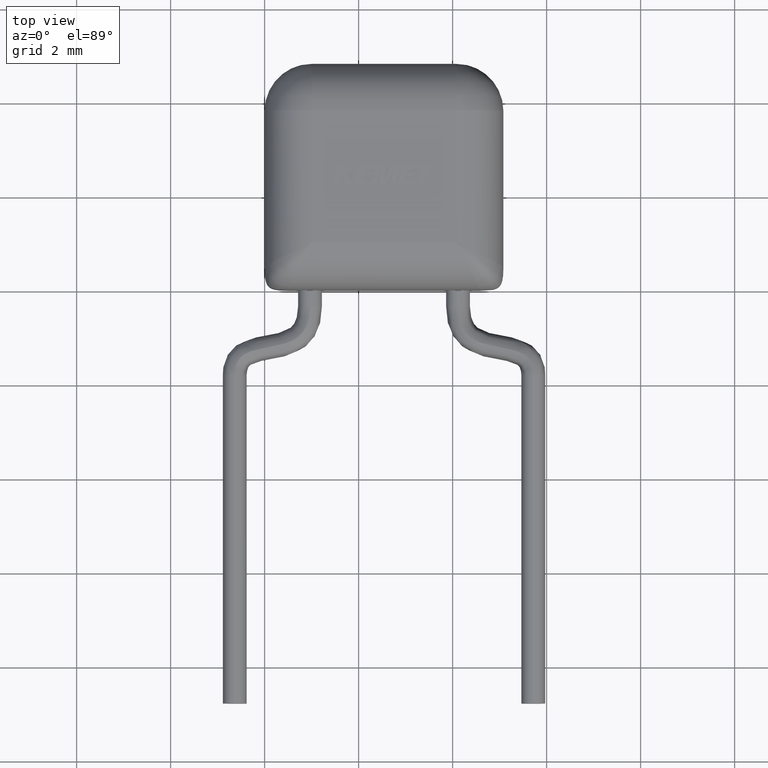
[diagram: clean part render]
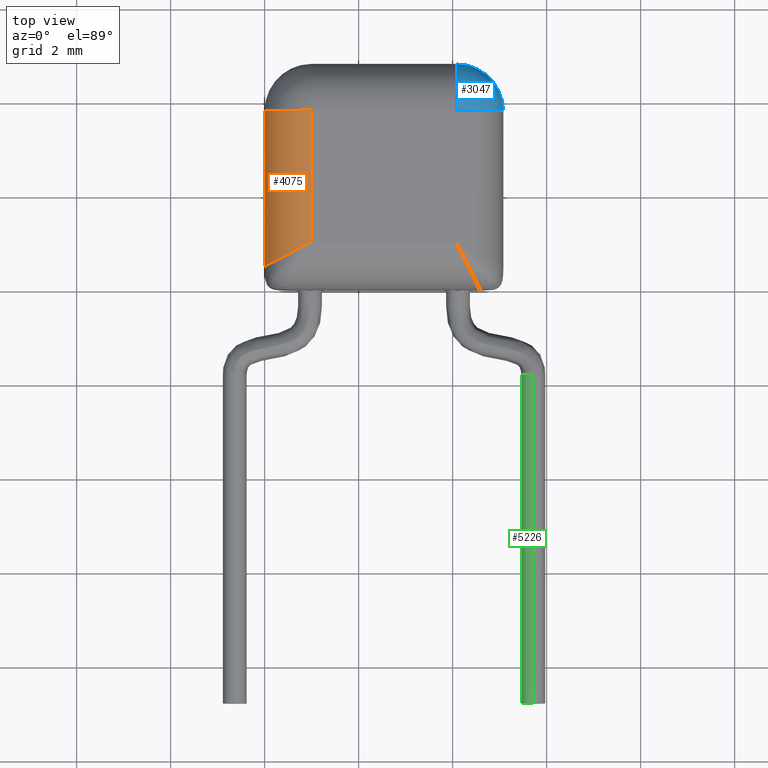
[diagram: same view with three faces highlighted in distinct colors, each labeled with its STEP entity id]
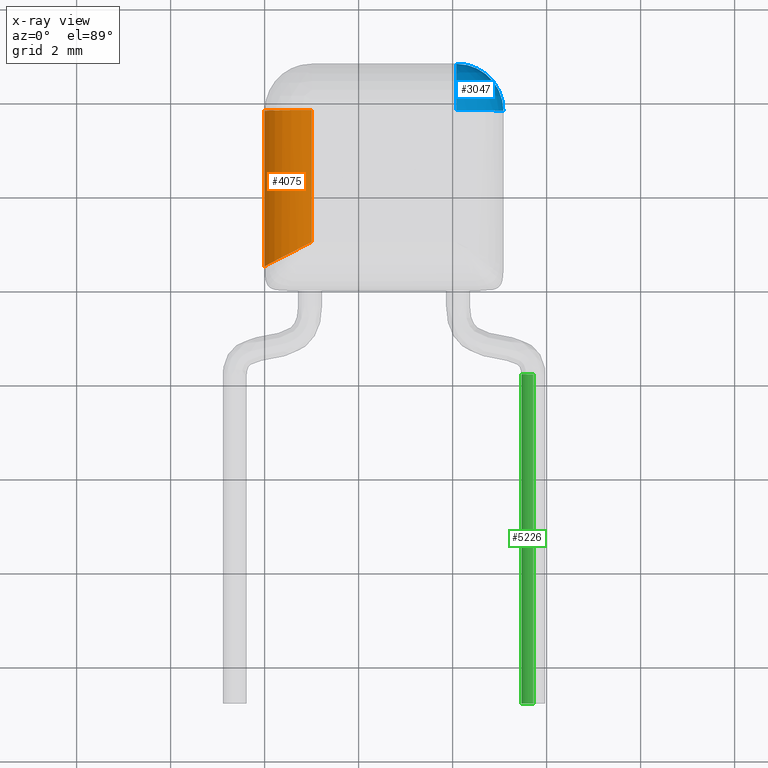
[diagram: x-ray of the same camera — body ghosted, the three highlighted faces saturated]
A machine part, top view with three faces highlighted in distinct colors.
The next image is the same camera in x-ray (body ghosted, the three faces saturated) — at least one of them is partly hidden behind the body in this view.
Their STEP definitions:

[orange] entity #4075 — the highlighted cylindrical surface (partial cylindrical patch) has radius 1 mm, axis along (0, -1, 0).
#37 = CARTESIAN_POINT ( 'NONE',  ( 0.0000000000000000000, 3.810759999999999700, 2.180000000000000200 ) ) ;
#119 = CARTESIAN_POINT ( 'NONE',  ( 0.05261129900044057100, 0.5263375340167020200, 2.500556340011421200 ) ) ;
#186 = CARTESIAN_POINT ( 'NONE',  ( 0.6064352118161902000, 0.8032222850395789300, 3.099368758143767400 ) ) ;
#204 = CARTESIAN_POINT ( 'NONE',  ( 0.5558561874351499700, 0.7779628542566706700, 3.076112443433945700 ) ) ;
#251 = CARTESIAN_POINT ( 'NONE',  ( 0.6184980475632071400, 0.8092505837394361500, 3.104378344659729700 ) ) ;
#845 = EDGE_CURVE ( 'NONE', #5909, #2433, #4259, .T. ) ;
#890 = CARTESIAN_POINT ( 'NONE',  ( 0.9999999999999997800, 0.9999999999999997800, 3.180000000000000200 ) ) ;
#975 = EDGE_CURVE ( 'NONE', #3223, #2433, #5128, .T. ) ;
#1173 = CARTESIAN_POINT ( 'NONE',  ( 0.02797684700615521400, 0.5140466306025406300, 2.417399604055470200 ) ) ;
#1419 = CARTESIAN_POINT ( 'NONE',  ( 0.9999999999999997800, 3.810759999999999700, 3.180000000000000200 ) ) ;
#1433 = FACE_OUTER_BOUND ( 'NONE', #2202, .T. ) ;
#1579 = VECTOR ( 'NONE', #5261, 1000.000000000000000 ) ;
#1694 = CYLINDRICAL_SURFACE ( 'NONE', #6323, 1.000000000000000000 ) ;
#1697 = VERTEX_POINT ( 'NONE', #37 ) ;
#1746 = CARTESIAN_POINT ( 'NONE',  ( 0.6323066505644324700, 0.8161533021734240800, 3.109950762281117800 ) ) ;
#1815 = CARTESIAN_POINT ( 'NONE',  ( 0.1414578906441557000, 0.5707462164869485700, 2.697057109226340500 ) ) ;
#1916 = AXIS2_PLACEMENT_3D ( 'NONE', #3597, #6211, #6654 ) ;
#1928 = VECTOR ( 'NONE', #4700, 1000.000000000000000 ) ;
#2163 = CARTESIAN_POINT ( 'NONE',  ( 0.05833379440531569200, 0.5291907817051679800, 2.516999852995674300 ) ) ;
#2202 = EDGE_LOOP ( 'NONE', ( #6061, #3657, #5513, #4486 ) ) ;
#2249 = CARTESIAN_POINT ( 'NONE',  ( 0.07792418075936855000, 0.5389608688602336400, 2.567333794272500300 ) ) ;
#2308 = CARTESIAN_POINT ( 'NONE',  ( 0.4024111036962501100, 0.7012872847228088800, 2.984345280747385100 ) ) ;
#2433 = VERTEX_POINT ( 'NONE', #890 ) ;
#2692 = CARTESIAN_POINT ( 'NONE',  ( -2.039231820514728100E-016, 0.4999999439244476300, 2.247807635510692400 ) ) ;
#2714 = CARTESIAN_POINT ( 'NONE',  ( -5.421010862427522200E-017, 0.4999999999999997800, 2.180000000000000600 ) ) ;
#2778 = CARTESIAN_POINT ( 'NONE',  ( 0.2192752663993055900, 0.6096608664574573200, 2.805806897902507000 ) ) ;
#2824 = CARTESIAN_POINT ( 'NONE',  ( 0.2526465610577999800, 0.6263353999103833400, 2.844645908044896900 ) ) ;
#2849 = CARTESIAN_POINT ( 'NONE',  ( 0.3004057133884388000, 0.6502036066705113600, 2.894593094074018300 ) ) ;
#2881 = CARTESIAN_POINT ( 'NONE',  ( -5.421010862427522200E-017, 0.4999999999999997800, 2.180000000000000600 ) ) ;
#3149 = CARTESIAN_POINT ( 'NONE',  ( 0.9999999999999997800, 0.0000000000000000000, 3.180000000000000200 ) ) ;
#3150 = DIRECTION ( 'NONE',  ( 0.0000000000000000000, -1.000000000000000000, 0.0000000000000000000 ) ) ;
#3218 = CARTESIAN_POINT ( 'NONE',  ( 0.07065721311030062600, 0.5353362404216923700, 2.549629717601660700 ) ) ;
#3223 = VERTEX_POINT ( 'NONE', #2881 ) ;
#3301 = CARTESIAN_POINT ( 'NONE',  ( 0.3548285192988905300, 0.6774230487217202100, 2.946202409536880400 ) ) ;
#3324 = CARTESIAN_POINT ( 'NONE',  ( 0.3077789602787390200, 0.6538904593797558700, 2.901721406068852500 ) ) ;
#3597 = CARTESIAN_POINT ( 'NONE',  ( 1.000000000000000000, 3.810759999999999700, 2.180000000000000200 ) ) ;
#3657 = ORIENTED_EDGE ( 'NONE', *, *, #845, .F. ) ;
#3857 = CARTESIAN_POINT ( 'NONE',  ( 0.6265844989219998600, 0.8132924681237804200, 3.107674472723926900 ) ) ;
#3878 = CARTESIAN_POINT ( 'NONE',  ( 0.2880975378288774300, 0.6440507032203024500, 2.882332072678239300 ) ) ;
#3903 = CARTESIAN_POINT ( 'NONE',  ( 0.5111597003944349200, 0.7556451090435067900, 3.053017818574586900 ) ) ;
#4069 = EDGE_CURVE ( 'NONE', #3223, #1697, #5176, .T. ) ;
#4075 = ADVANCED_FACE ( 'NONE', ( #1433 ), #1694, .T. ) ;
#4223 = CARTESIAN_POINT ( 'NONE',  ( 0.006921618483178028900, 0.5035115945656391000, 2.316182436500033900 ) ) ;
#4259 = LINE ( 'NONE', #3149, #1579 ) ;
#4486 = ORIENTED_EDGE ( 'NONE', *, *, #4069, .F. ) ;
#4700 = DIRECTION ( 'NONE',  ( -0.0000000000000000000, 1.000000000000000000, -0.0000000000000000000 ) ) ;
#4744 = CARTESIAN_POINT ( 'NONE',  ( 0.03676939253717599600, 0.5184362359606937700, 2.450912658359478700 ) ) ;
#4822 = EDGE_CURVE ( 'NONE', #1697, #5909, #5242, .T. ) ;
#4904 = CARTESIAN_POINT ( 'NONE',  ( 0.1097746922682269500, 0.5548572452970981200, 2.639912443074629700 ) ) ;
#5128 = B_SPLINE_CURVE_WITH_KNOTS ( 'NONE', 3,
 ( #2714, #2692, #4223, #1173, #4744, #119, #2163, #3218, #2249, #4904, #1815, #5867, #2778, #2824, #6382, #3878, #2849, #3324, #3301, #2308, #6400, #3903, #204, #5939, #186, #251, #3857, #1746, #5404, #6439, #5386 ),
 .UNSPECIFIED., .F., .F.,
 ( 4, 2, 2, 2, 2, 2, 2, 1, 2, 2, 2, 2, 1, 1, 2, 2, 4 ),
 ( 0.0000000000000000000, 0.1249999999999967200, 0.1874999999999950900, 0.2187499999999939200, 0.2499999999999927300, 0.3749999999999879500, 0.4374999999999859000, 0.4687499999999848500, 0.4843749999999842900, 0.4999999999999837900, 0.6249999999999837900, 0.6874999999999839000, 0.7187499999999836800, 0.7343749999999835700, 0.7421874999999836800, 0.7499999999999837900, 1.000000000000000000 ),
 .UNSPECIFIED. ) ;
#5176 = LINE ( 'NONE', #5752, #1928 ) ;
#5242 = CIRCLE ( 'NONE', #1916, 1.000000000000000000 ) ;
#5261 = DIRECTION ( 'NONE',  ( 0.0000000000000000000, -1.000000000000000000, 0.0000000000000000000 ) ) ;
#5303 = DIRECTION ( 'NONE',  ( 0.0000000000000000000, 0.0000000000000000000, -1.000000000000000000 ) ) ;
#5386 = CARTESIAN_POINT ( 'NONE',  ( 0.9999999999999997800, 0.9999999999999997800, 3.180000000000000200 ) ) ;
#5404 = CARTESIAN_POINT ( 'NONE',  ( 0.7125289222189797900, 0.8562673831482947600, 3.141427861823175200 ) ) ;
#5513 = ORIENTED_EDGE ( 'NONE', *, *, #4822, .F. ) ;
#5716 = CARTESIAN_POINT ( 'NONE',  ( 0.9999999999999997800, 0.0000000000000000000, 2.180000000000000200 ) ) ;
#5752 = CARTESIAN_POINT ( 'NONE',  ( 0.0000000000000000000, 0.0000000000000000000, 2.180000000000000200 ) ) ;
#5867 = CARTESIAN_POINT ( 'NONE',  ( 0.1986202154846358500, 0.5993374783322629200, 2.779083544177921400 ) ) ;
#5909 = VERTEX_POINT ( 'NONE', #1419 ) ;
#5939 = CARTESIAN_POINT ( 'NONE',  ( 0.5787597796746828400, 0.7893979498765241200, 3.087234376097173000 ) ) ;
#6061 = ORIENTED_EDGE ( 'NONE', *, *, #975, .T. ) ;
#6211 = DIRECTION ( 'NONE',  ( 0.0000000000000000000, 1.000000000000000000, 0.0000000000000000000 ) ) ;
#6323 = AXIS2_PLACEMENT_3D ( 'NONE', #5716, #3150, #5303 ) ;
#6382 = CARTESIAN_POINT ( 'NONE',  ( 0.2699287684740484000, 0.6349700294531301900, 2.863753647162403200 ) ) ;
#6400 = CARTESIAN_POINT ( 'NONE',  ( 0.4828455422823755300, 0.7415032069367891700, 3.036488308019626500 ) ) ;
#6439 = CARTESIAN_POINT ( 'NONE',  ( 0.8342888460443097500, 0.9171444230200337400, 3.180000000000000200 ) ) ;
#6654 = DIRECTION ( 'NONE',  ( 0.0000000000000000000, 0.0000000000000000000, 1.000000000000000000 ) ) ;

[blue] entity #3047 — the highlighted spherical surface has radius 1 mm.
#141 = VERTEX_POINT ( 'NONE', #6658 ) ;
#236 = CARTESIAN_POINT ( 'NONE',  ( 4.079999999999999200, 3.810759999999999700, 2.180000000000000200 ) ) ;
#351 = CIRCLE ( 'NONE', #2317, 1.000000000000000000 ) ;
#456 = VERTEX_POINT ( 'NONE', #5431 ) ;
#514 = EDGE_CURVE ( 'NONE', #456, #141, #351, .T. ) ;
#865 = AXIS2_PLACEMENT_3D ( 'NONE', #236, #1248, #3335 ) ;
#1106 = DIRECTION ( 'NONE',  ( 0.0000000000000000000, 1.000000000000000000, 0.0000000000000000000 ) ) ;
#1248 = DIRECTION ( 'NONE',  ( 0.0000000000000000000, 1.000000000000000000, 0.0000000000000000000 ) ) ;
#1943 = DIRECTION ( 'NONE',  ( 0.0000000000000000000, 0.0000000000000000000, -1.000000000000000000 ) ) ;
#1965 = DIRECTION ( 'NONE',  ( -1.000000000000000000, 0.0000000000000000000, 0.0000000000000000000 ) ) ;
#2144 = AXIS2_PLACEMENT_3D ( 'NONE', #4766, #1106, #3768 ) ;
#2317 = AXIS2_PLACEMENT_3D ( 'NONE', #4032, #5542, #2484 ) ;
#2484 = DIRECTION ( 'NONE',  ( 0.0000000000000000000, 0.0000000000000000000, -1.000000000000000000 ) ) ;
#2513 = EDGE_LOOP ( 'NONE', ( #2623, #5172, #3339 ) ) ;
#2579 = AXIS2_PLACEMENT_3D ( 'NONE', #4532, #1943, #1965 ) ;
#2623 = ORIENTED_EDGE ( 'NONE', *, *, #6461, .T. ) ;
#3047 = ADVANCED_FACE ( 'NONE', ( #4638 ), #3561, .T. ) ;
#3078 = CARTESIAN_POINT ( 'NONE',  ( 5.080000000000000100, 3.810759999999999700, 2.180000000000000200 ) ) ;
#3335 = DIRECTION ( 'NONE',  ( 1.000000000000000000, 0.0000000000000000000, 0.0000000000000000000 ) ) ;
#3339 = ORIENTED_EDGE ( 'NONE', *, *, #514, .T. ) ;
#3561 = SPHERICAL_SURFACE ( 'NONE', #865, 1.000000000000000000 ) ;
#3768 = DIRECTION ( 'NONE',  ( 0.0000000000000000000, 0.0000000000000000000, 1.000000000000000000 ) ) ;
#4032 = CARTESIAN_POINT ( 'NONE',  ( 4.079999999999999200, 3.810759999999999700, 2.180000000000000200 ) ) ;
#4356 = CIRCLE ( 'NONE', #2579, 1.000000000000000000 ) ;
#4382 = VERTEX_POINT ( 'NONE', #3078 ) ;
#4532 = CARTESIAN_POINT ( 'NONE',  ( 4.079999999999999200, 3.810759999999999700, 2.180000000000000200 ) ) ;
#4638 = FACE_OUTER_BOUND ( 'NONE', #2513, .T. ) ;
#4766 = CARTESIAN_POINT ( 'NONE',  ( 4.080000000000000100, 3.810759999999999700, 2.180000000000000200 ) ) ;
#5172 = ORIENTED_EDGE ( 'NONE', *, *, #6299, .F. ) ;
#5431 = CARTESIAN_POINT ( 'NONE',  ( 4.079999999999999200, 4.810760000000000100, 2.180000000000000200 ) ) ;
#5542 = DIRECTION ( 'NONE',  ( 1.000000000000000000, 0.0000000000000000000, 0.0000000000000000000 ) ) ;
#5558 = CIRCLE ( 'NONE', #2144, 1.000000000000000000 ) ;
#6299 = EDGE_CURVE ( 'NONE', #456, #4382, #4356, .T. ) ;
#6461 = EDGE_CURVE ( 'NONE', #141, #4382, #5558, .T. ) ;
#6658 = CARTESIAN_POINT ( 'NONE',  ( 4.079999999999999200, 3.810759999999999700, 3.180000000000000200 ) ) ;

[green] entity #5226 — the highlighted face is a freeform B-spline surface patch.
#33 = DIRECTION ( 'NONE',  ( -0.003953937269739525200, 0.9999921831594820200, 0.0000000000000000000 ) ) ;
#222 = VECTOR ( 'NONE', #3997, 1000.000000000000000 ) ;
#254 = ORIENTED_EDGE ( 'NONE', *, *, #4238, .F. ) ;
#495 = CARTESIAN_POINT ( 'NONE',  ( 5.714999999999997200, -1.789240000000000800, 1.845000000000000000 ) ) ;
#505 = AXIS2_PLACEMENT_3D ( 'NONE', #6218, #2111, #4138 ) ;
#575 = DIRECTION ( 'NONE',  ( 0.0000000000000000000, 0.0000000000000000000, -1.000000000000000000 ) ) ;
#852 = CIRCLE ( 'NONE', #3346, 0.2550000000000000000 ) ;
#1002 = FACE_OUTER_BOUND ( 'NONE', #5970, .T. ) ;
#1140 = CARTESIAN_POINT ( 'NONE',  ( 5.205003986588661900, -1.791256508007568000, 1.845000000000000200 ) ) ;
#1663 = ORIENTED_EDGE ( 'NONE', *, *, #5480, .T. ) ;
#1666 = CARTESIAN_POINT ( 'NONE',  ( 5.205003986588661900, -1.791256508007568000, 1.335000000000000000 ) ) ;
#1819 = VERTEX_POINT ( 'NONE', #3204 ) ;
#2021 = LINE ( 'NONE', #6102, #222 ) ;
#2096 = CIRCLE ( 'NONE', #505, 0.2550000000000000000 ) ;
#2111 = DIRECTION ( 'NONE',  ( -0.003953937269739525200, 0.9999921831594820200, 0.0000000000000000000 ) ) ;
#2124 = CARTESIAN_POINT ( 'NONE',  ( 5.714999999999996300, -8.789239999999999500, 1.590000000000000100 ) ) ;
#2166 = VERTEX_POINT ( 'NONE', #3982 ) ;
#2659 = LINE ( 'NONE', #495, #3059 ) ;
#2961 =( BOUNDED_SURFACE ( )  B_SPLINE_SURFACE ( 3, 1, ( 
 ( #4735, #5223 ),
 ( #1666, #3730 ),
 ( #1140, #6266 ),
 ( #5809, #4248 ) ),
 .UNSPECIFIED., .F., .F., .T. ) 
 B_SPLINE_SURFACE_WITH_KNOTS ( ( 4, 4 ),
 ( 2, 2 ),
 ( 0.0000000000000000000, 1.000000000000000000 ),
 ( 0.0000000000000000000, 1.000000000000000000 ),
 .UNSPECIFIED. ) 
 GEOMETRIC_REPRESENTATION_ITEM ( )  RATIONAL_B_SPLINE_SURFACE ( (
 ( 1.000000000000000000, 1.000000000000000000),
 ( 0.3333333333333333700, 0.3333333333333333700),
 ( 0.3333333333333333700, 0.3333333333333333700),
 ( 1.000000000000000000, 1.000000000000000000) ) ) 
 REPRESENTATION_ITEM ( '' )  SURFACE ( )  );
#3059 = VECTOR ( 'NONE', #3618, 1000.000000000000000 ) ;
#3204 = CARTESIAN_POINT ( 'NONE',  ( 5.714999999999997200, -1.789240000000000800, 1.845000000000000000 ) ) ;
#3287 = EDGE_CURVE ( 'NONE', #4295, #1819, #2096, .T. ) ;
#3346 = AXIS2_PLACEMENT_3D ( 'NONE', #2124, #33, #575 ) ;
#3618 = DIRECTION ( 'NONE',  ( -1.239088197126291100E-016, -1.000000000000000000, 0.0000000000000000000 ) ) ;
#3730 = CARTESIAN_POINT ( 'NONE',  ( 5.205003986588660100, -8.791256508007563800, 1.335000000000000000 ) ) ;
#3809 = VERTEX_POINT ( 'NONE', #6691 ) ;
#3982 = CARTESIAN_POINT ( 'NONE',  ( 5.714999999999996300, -8.789239999999999500, 1.335000000000000000 ) ) ;
#3997 = DIRECTION ( 'NONE',  ( -1.239088197126291100E-016, -1.000000000000000000, 0.0000000000000000000 ) ) ;
#4023 = EDGE_CURVE ( 'NONE', #2166, #3809, #852, .T. ) ;
#4138 = DIRECTION ( 'NONE',  ( 0.0000000000000000000, 0.0000000000000000000, -1.000000000000000000 ) ) ;
#4150 = CARTESIAN_POINT ( 'NONE',  ( 5.714999999999997200, -1.789240000000000800, 1.335000000000000000 ) ) ;
#4238 = EDGE_CURVE ( 'NONE', #1819, #3809, #2659, .T. ) ;
#4248 = CARTESIAN_POINT ( 'NONE',  ( 5.714999999999996300, -8.789239999999995900, 1.845000000000000000 ) ) ;
#4295 = VERTEX_POINT ( 'NONE', #4150 ) ;
#4735 = CARTESIAN_POINT ( 'NONE',  ( 5.714999999999997200, -1.789240000000000800, 1.335000000000000000 ) ) ;
#5223 = CARTESIAN_POINT ( 'NONE',  ( 5.714999999999996300, -8.789239999999995900, 1.335000000000000000 ) ) ;
#5226 = ADVANCED_FACE ( 'NONE', ( #1002 ), #2961, .F. ) ;
#5480 = EDGE_CURVE ( 'NONE', #4295, #2166, #2021, .T. ) ;
#5645 = ORIENTED_EDGE ( 'NONE', *, *, #4023, .T. ) ;
#5809 = CARTESIAN_POINT ( 'NONE',  ( 5.714999999999997200, -1.789240000000000800, 1.845000000000000000 ) ) ;
#5940 = ORIENTED_EDGE ( 'NONE', *, *, #3287, .F. ) ;
#5970 = EDGE_LOOP ( 'NONE', ( #254, #5940, #1663, #5645 ) ) ;
#6102 = CARTESIAN_POINT ( 'NONE',  ( 5.714999999999997200, -1.789240000000000800, 1.335000000000000000 ) ) ;
#6218 = CARTESIAN_POINT ( 'NONE',  ( 5.714999999999997200, -1.789240000000000800, 1.590000000000000100 ) ) ;
#6266 = CARTESIAN_POINT ( 'NONE',  ( 5.205003986588660100, -8.791256508007563800, 1.845000000000000200 ) ) ;
#6691 = CARTESIAN_POINT ( 'NONE',  ( 5.714999999999996300, -8.789239999999999500, 1.845000000000000000 ) ) ;